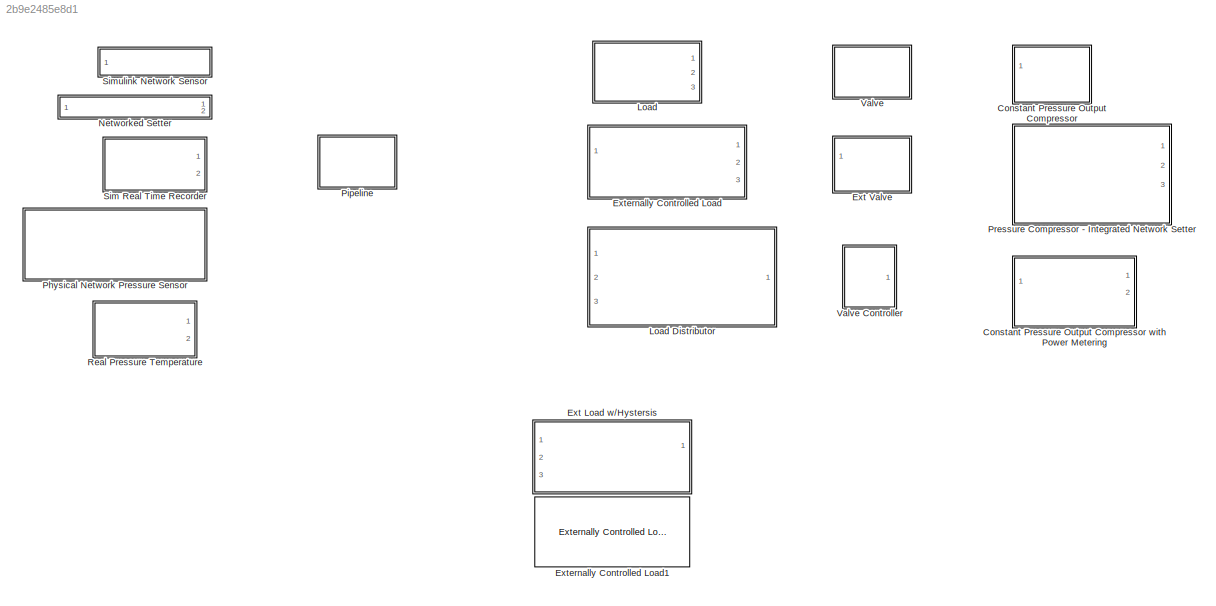
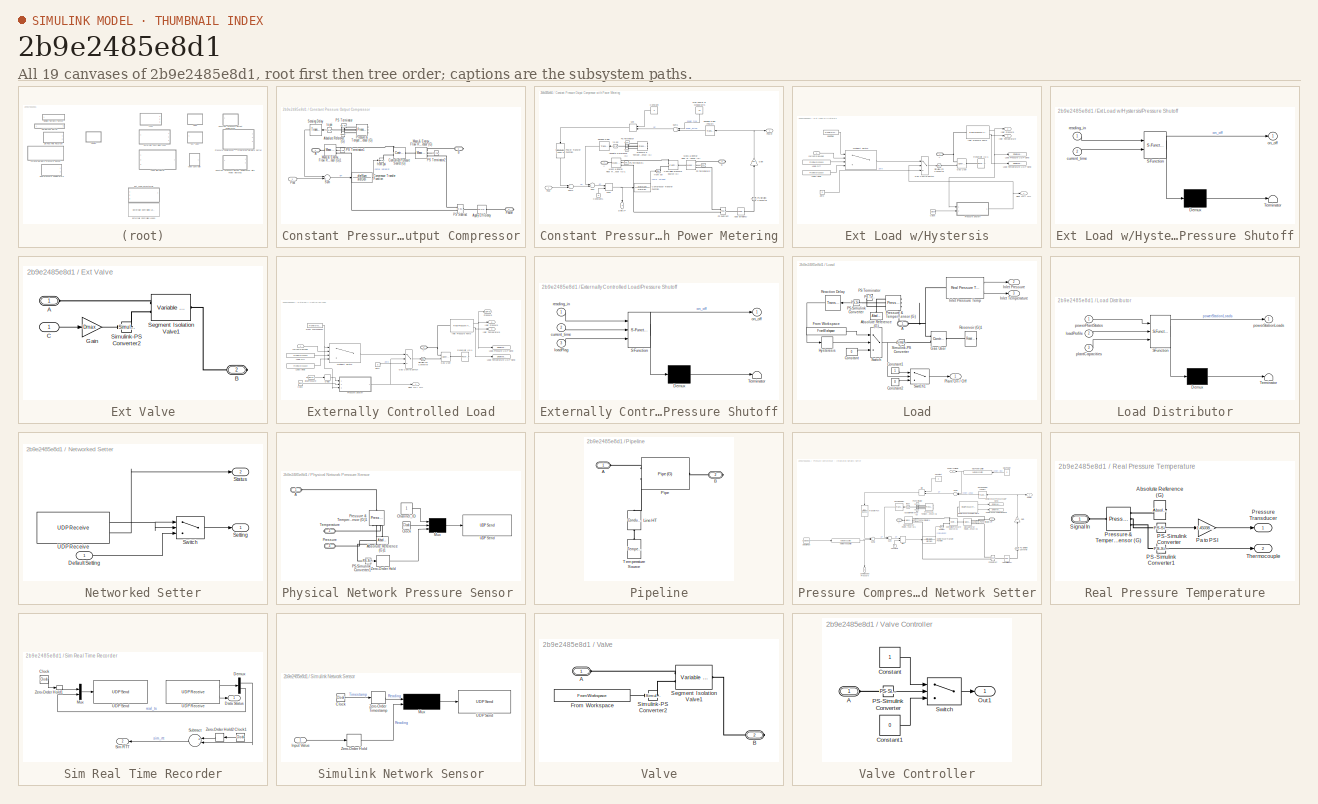
[diagram: thumbnail index - all 19 canvases of the model, root first then tree order]
MODEL slx_2b9e2485e8d1
KIND library
CONFIG AbsTol = auto
CONFIG EnableMultiTasking = off
CONFIG FixedStep = auto
CONFIG MaxStep = auto
CONFIG MinStep = auto
CONFIG RelTol = 1e-3
CONFIG SampleTimeConstraint = Unconstrained
CONFIG Solver = VariableStepAuto
CONFIG SolverName = VariableStepAuto
CONFIG StartTime = 0.0
CONFIG StopTime = 10.0
BLOCK [SubSystem] Constant Pressure Output Compressor
  Commented = on
  Ports = [1, 0, 0, 0, 0, 1, 2]
  RequestExecContextInheritance = off
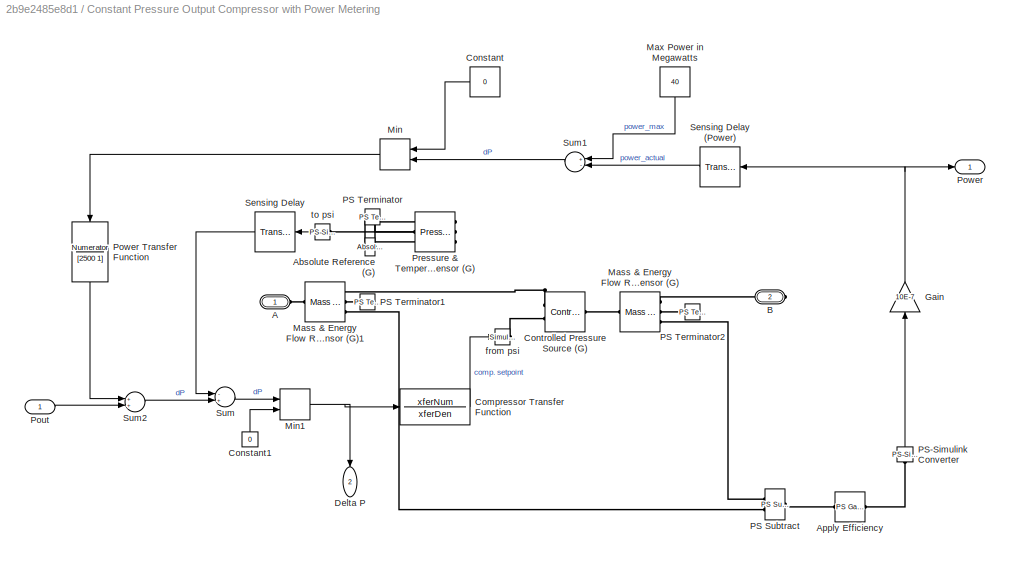
BLOCK [SubSystem] Constant Pressure Output Compressor with Power Metering
  AncestorBlock = gasLibrary/Constant Pressure\nOutput Compressor
  Ports = [1, 2, 0, 0, 0, 1, 1]
  RequestExecContextInheritance = off
BLOCK [PMIOPort] Constant Pressure Output Compressor with Power Metering/A
  Side = Left
BLOCK [Reference] Constant Pressure Output Compressor with Power Metering/Absolute Reference (G)  REF=fl_lib/Gas/Elements/Absolute Reference
(G)
  Ports = [0, 0, 0, 0, 0, 1]
  SourceBlock = fl_lib/Gas/Elements/Absolute Reference\n(G)
  SourceProductBaseCode = SS
  SourceProductName = Simscape
  SourceType = Absolute Reference\n(G)
BLOCK [Reference] Constant Pressure Output Compressor with Power Metering/Apply Efficiency  REF=fl_lib/Physical Signals/Functions/PS Gain
  Ports = [0, 0, 0, 0, 0, 1, 1]
  SourceBlock = fl_lib/Physical Signals/Functions/PS Gain
  SourceProductBaseCode = SS
  SourceProductName = Simscape
  SourceType = PS Gain
BLOCK [PMIOPort] Constant Pressure Output Compressor with Power Metering/B
  Port = 2
  Side = Right
BLOCK [TransferFcn] Constant Pressure Output Compressor with Power Metering/Compressor Transfer Function
  Denominator = xferDen
  Numerator = xferNum
BLOCK [Constant] Constant Pressure Output Compressor with Power Metering/Constant
  Value = 0
BLOCK [Constant] Constant Pressure Output Compressor with Power Metering/Constant1
  Value = 0
BLOCK [Reference] Constant Pressure Output Compressor with Power Metering/Controlled Pressure Source (G)  REF=fl_lib/Gas/Sources/Controlled Pressure
Source (G)
  Ports = [0, 0, 0, 0, 0, 2, 1]
  SourceBlock = fl_lib/Gas/Sources/Controlled Pressure\nSource (G)
  SourceProductBaseCode = SS
  SourceProductName = Simscape
  SourceType = Controlled Pressure\nSource (G)
BLOCK [Outport] Constant Pressure Output Compressor with Power Metering/Delta P
  IconDisplay = Port number
  Port = 2
BLOCK [Gain] Constant Pressure Output Compressor with Power Metering/Gain
  Gain = 10E-7
  OutDataTypeStr = Inherit: Inherit via internal rule
  ParamDataTypeStr = Inherit: Inherit via internal rule
  SaturateOnIntegerOverflow = off
BLOCK [Reference] Constant Pressure Output Compressor with Power Metering/Mass & Energy Flow Rate Sensor (G)  REF=fl_lib/Gas/Sensors/Mass & Energy Flow
Rate Sensor (G)
  Ports = [0, 0, 0, 0, 0, 1, 3]
  SourceBlock = fl_lib/Gas/Sensors/Mass & Energy Flow\nRate Sensor (G)
  SourceProductBaseCode = SS
  SourceProductName = Simscape
  SourceType = Mass & Energy Flow\nRate Sensor (G)
BLOCK [Reference] Constant Pressure Output Compressor with Power Metering/Mass & Energy Flow Rate Sensor (G)1  REF=fl_lib/Gas/Sensors/Mass & Energy Flow
Rate Sensor (G)
  Ports = [0, 0, 0, 0, 0, 1, 3]
  SourceBlock = fl_lib/Gas/Sensors/Mass & Energy Flow\nRate Sensor (G)
  SourceProductBaseCode = SS
  SourceProductName = Simscape
  SourceType = Mass & Energy Flow\nRate Sensor (G)
BLOCK [Constant] Constant Pressure Output Compressor with Power Metering/Max Power in Megawatts
  Value = 40
BLOCK [MinMax] Constant Pressure Output Compressor with Power Metering/Min
  InputSameDT = off
  Inputs = 2
  Ports = [2, 1]
  SaturateOnIntegerOverflow = off
BLOCK [MinMax] Constant Pressure Output Compressor with Power Metering/Min1
  Function = max
  InputSameDT = off
  Inputs = 2
  Ports = [2, 1]
  SaturateOnIntegerOverflow = off
BLOCK [Reference] Constant Pressure Output Compressor with Power Metering/PS Subtract  REF=fl_lib/Physical Signals/Functions/PS Subtract
  Ports = [0, 0, 0, 0, 0, 2, 1]
  SourceBlock = fl_lib/Physical Signals/Functions/PS Subtract
  SourceProductBaseCode = SS
  SourceProductName = Simscape
  SourceType = PS Subtract
BLOCK [Reference] Constant Pressure Output Compressor with Power Metering/PS Terminator  REF=fl_lib/Physical Signals/Sinks/PS Terminator
  Ports = [0, 0, 0, 0, 0, 1]
  SourceBlock = fl_lib/Physical Signals/Sinks/PS Terminator
  SourceProductBaseCode = SS
  SourceProductName = Simscape
  SourceType = PS Terminator
BLOCK [Reference] Constant Pressure Output Compressor with Power Metering/PS Terminator1  REF=fl_lib/Physical Signals/Sinks/PS Terminator
  Ports = [0, 0, 0, 0, 0, 1]
  SourceBlock = fl_lib/Physical Signals/Sinks/PS Terminator
  SourceProductBaseCode = SS
  SourceProductName = Simscape
  SourceType = PS Terminator
BLOCK [Reference] Constant Pressure Output Compressor with Power Metering/PS Terminator2  REF=fl_lib/Physical Signals/Sinks/PS Terminator
  Ports = [0, 0, 0, 0, 0, 1]
  SourceBlock = fl_lib/Physical Signals/Sinks/PS Terminator
  SourceProductBaseCode = SS
  SourceProductName = Simscape
  SourceType = PS Terminator
BLOCK [Reference] Constant Pressure Output Compressor with Power Metering/PS-Simulink Converter  REF=nesl_utility/PS-Simulink
Converter
  Ports = [0, 1, 0, 0, 0, 1]
  SourceBlock = nesl_utility/PS-Simulink\nConverter
  SourceProductBaseCode = SS
  SourceProductName = Simscape
  SourceType = PS-Simulink\nConverter
BLOCK [Inport] Constant Pressure Output Compressor with Power Metering/Pout
  IconDisplay = Port number
BLOCK [Outport] Constant Pressure Output Compressor with Power Metering/Power
  IconDisplay = Port number
BLOCK [TransferFcn] Constant Pressure Output Compressor with Power Metering/Power Transfer Function
  Denominator = [2500 1]
  Numerator = Numerator
BLOCK [Reference] Constant Pressure Output Compressor with Power Metering/Pressure & Temperature Sensor (G)  REF=fl_lib/Gas/Sensors/Pressure &
Temperature Sensor
(G)
  Ports = [0, 0, 0, 0, 0, 1, 3]
  SourceBlock = fl_lib/Gas/Sensors/Pressure &\nTemperature Sensor\n(G)
  SourceProductBaseCode = SS
  SourceProductName = Simscape
  SourceType = Pressure &\nTemperature Sensor\n(G)
BLOCK [TransportDelay] Constant Pressure Output Compressor with Power Metering/Sensing Delay
  DelayTime = delaySeconds
  Ports = [1, 1]
  TransDelayFeedthrough = on
BLOCK [TransportDelay] Constant Pressure Output Compressor with Power Metering/Sensing Delay (Power)
  DelayTime = delaySeconds
  Ports = [1, 1]
  TransDelayFeedthrough = on
BLOCK [Sum] Constant Pressure Output Compressor with Power Metering/Sum
  InputSameDT = off
  Inputs = -+
  OutDataTypeStr = Inherit: Inherit via internal rule
  Ports = [2, 1]
  SaturateOnIntegerOverflow = off
BLOCK [Sum] Constant Pressure Output Compressor with Power Metering/Sum1
  InputSameDT = off
  Inputs = +-
  OutDataTypeStr = Inherit: Inherit via internal rule
  Ports = [2, 1]
  SaturateOnIntegerOverflow = off
BLOCK [Sum] Constant Pressure Output Compressor with Power Metering/Sum2
  InputSameDT = off
  OutDataTypeStr = Inherit: Inherit via internal rule
  Ports = [2, 1]
  SaturateOnIntegerOverflow = off
BLOCK [Reference] Constant Pressure Output Compressor with Power Metering/from psi  REF=nesl_utility/Simulink-PS
Converter
  Ports = [1, 0, 0, 0, 0, 0, 1]
  SourceBlock = nesl_utility/Simulink-PS\nConverter
  SourceProductBaseCode = SS
  SourceProductName = Simscape
  SourceType = Simulink-PS\nConverter
BLOCK [Reference] Constant Pressure Output Compressor with Power Metering/to psi  REF=nesl_utility/PS-Simulink
Converter
  Ports = [0, 1, 0, 0, 0, 1]
  SourceBlock = nesl_utility/PS-Simulink\nConverter
  SourceProductBaseCode = SS
  SourceProductName = Simscape
  SourceType = PS-Simulink\nConverter
BLOCK [PMIOPort] Constant Pressure Output Compressor/A
  Side = Left
BLOCK [Reference] Constant Pressure Output Compressor/Absolute Reference (G)  REF=fl_lib/Gas/Elements/Absolute Reference
(G)
  Ports = [0, 0, 0, 0, 0, 1]
  SourceBlock = fl_lib/Gas/Elements/Absolute Reference\n(G)
  SourceProductBaseCode = SS
  SourceProductName = Simscape
  SourceType = Absolute Reference\n(G)
BLOCK [Reference] Constant Pressure Output Compressor/Apply Efficiency  REF=fl_lib/Physical Signals/Functions/PS Gain
  Ports = [0, 0, 0, 0, 0, 1, 1]
  SourceBlock = fl_lib/Physical Signals/Functions/PS Gain
  SourceProductBaseCode = SS
  SourceProductName = Simscape
  SourceType = PS Gain
BLOCK [PMIOPort] Constant Pressure Output Compressor/B
  Port = 3
  Side = Right
BLOCK [TransferFcn] Constant Pressure Output Compressor/Compressor Transfer Function
  Denominator = xferDen
  Numerator = xferNum
BLOCK [Reference] Constant Pressure Output Compressor/Controlled Pressure Source (G)  REF=fl_lib/Gas/Sources/Controlled Pressure
Source (G)
  Ports = [0, 0, 0, 0, 0, 2, 1]
  SourceBlock = fl_lib/Gas/Sources/Controlled Pressure\nSource (G)
  SourceProductBaseCode = SS
  SourceProductName = Simscape
  SourceType = Controlled Pressure\nSource (G)
BLOCK [Reference] Constant Pressure Output Compressor/Mass & Energy Flow Rate Sensor (G)  REF=fl_lib/Gas/Sensors/Mass & Energy Flow
Rate Sensor (G)
  Ports = [0, 0, 0, 0, 0, 1, 3]
  SourceBlock = fl_lib/Gas/Sensors/Mass & Energy Flow\nRate Sensor (G)
  SourceProductBaseCode = SS
  SourceProductName = Simscape
  SourceType = Mass & Energy Flow\nRate Sensor (G)
BLOCK [Reference] Constant Pressure Output Compressor/Mass & Energy Flow Rate Sensor (G)1  REF=fl_lib/Gas/Sensors/Mass & Energy Flow
Rate Sensor (G)
  Ports = [0, 0, 0, 0, 0, 1, 3]
  SourceBlock = fl_lib/Gas/Sensors/Mass & Energy Flow\nRate Sensor (G)
  SourceProductBaseCode = SS
  SourceProductName = Simscape
  SourceType = Mass & Energy Flow\nRate Sensor (G)
BLOCK [Reference] Constant Pressure Output Compressor/PS Subtract  REF=fl_lib/Physical Signals/Functions/PS Subtract
  Ports = [0, 0, 0, 0, 0, 2, 1]
  SourceBlock = fl_lib/Physical Signals/Functions/PS Subtract
  SourceProductBaseCode = SS
  SourceProductName = Simscape
  SourceType = PS Subtract
BLOCK [Reference] Constant Pressure Output Compressor/PS Terminator  REF=fl_lib/Physical Signals/Sinks/PS Terminator
  Ports = [0, 0, 0, 0, 0, 1]
  SourceBlock = fl_lib/Physical Signals/Sinks/PS Terminator
  SourceProductBaseCode = SS
  SourceProductName = Simscape
  SourceType = PS Terminator
BLOCK [Reference] Constant Pressure Output Compressor/PS Terminator1  REF=fl_lib/Physical Signals/Sinks/PS Terminator
  Ports = [0, 0, 0, 0, 0, 1]
  SourceBlock = fl_lib/Physical Signals/Sinks/PS Terminator
  SourceProductBaseCode = SS
  SourceProductName = Simscape
  SourceType = PS Terminator
BLOCK [Reference] Constant Pressure Output Compressor/PS Terminator2  REF=fl_lib/Physical Signals/Sinks/PS Terminator
  Ports = [0, 0, 0, 0, 0, 1]
  SourceBlock = fl_lib/Physical Signals/Sinks/PS Terminator
  SourceProductBaseCode = SS
  SourceProductName = Simscape
  SourceType = PS Terminator
BLOCK [Inport] Constant Pressure Output Compressor/Pout
  IconDisplay = Port number
BLOCK [PMIOPort] Constant Pressure Output Compressor/Power
  Port = 2
  Side = Right
BLOCK [Reference] Constant Pressure Output Compressor/Pressure & Temperature Sensor (G)  REF=fl_lib/Gas/Sensors/Pressure &
Temperature Sensor
(G)
  Ports = [0, 0, 0, 0, 0, 1, 3]
  SourceBlock = fl_lib/Gas/Sensors/Pressure &\nTemperature Sensor\n(G)
  SourceProductBaseCode = SS
  SourceProductName = Simscape
  SourceType = Pressure &\nTemperature Sensor\n(G)
BLOCK [TransportDelay] Constant Pressure Output Compressor/Sensing Delay
  DelayTime = delaySeconds
  Ports = [1, 1]
  TransDelayFeedthrough = on
BLOCK [Sum] Constant Pressure Output Compressor/Sum
  InputSameDT = off
  Inputs = -+
  OutDataTypeStr = Inherit: Inherit via internal rule
  Ports = [2, 1]
  SaturateOnIntegerOverflow = off
BLOCK [Reference] Constant Pressure Output Compressor/from psi  REF=nesl_utility/Simulink-PS
Converter
  Ports = [1, 0, 0, 0, 0, 0, 1]
  SourceBlock = nesl_utility/Simulink-PS\nConverter
  SourceProductBaseCode = SS
  SourceProductName = Simscape
  SourceType = Simulink-PS\nConverter
BLOCK [Reference] Constant Pressure Output Compressor/to psi  REF=nesl_utility/PS-Simulink
Converter
  Ports = [0, 1, 0, 0, 0, 1]
  SourceBlock = nesl_utility/PS-Simulink\nConverter
  SourceProductBaseCode = SS
  SourceProductName = Simscape
  SourceType = PS-Simulink\nConverter
BLOCK [SubSystem] Ext Load w//Hystersis
  AncestorBlock = gasLibrary/Externally Controlled Load
  Commented = on
  Ports = [1, 3, 0, 0, 0, 1]
  RequestExecContextInheritance = off
BLOCK [PMIOPort] Ext Load w//Hystersis/A
  Side = Left
BLOCK [Clock] Ext Load w//Hystersis/Clock
BLOCK [Switch] Ext Load w//Hystersis/Gas Control Switch
  Criteria = u2 > Threshold
  InputSameDT = off
  SaturateOnIntegerOverflow = off
BLOCK [Reference] Ext Load w//Hystersis/Gas User  REF=fl_lib/Gas/Sources/Controlled Mass Flow
Rate Source (G)
  Ports = [0, 0, 0, 0, 0, 2, 1]
  SourceBlock = fl_lib/Gas/Sources/Controlled Mass Flow\nRate Source (G)
  SourceProductBaseCode = SS
  SourceProductName = Simscape
  SourceType = Controlled Mass Flow\nRate Source (G)
BLOCK [Outport] Ext Load w//Hystersis/Inlet Pressure
  IconDisplay = Port number
  Port = 2
BLOCK [Reference] Ext Load w//Hystersis/Inlet Pressure Temp  REF=$bdroot/Real Pressure Temperature
  Ports = [0, 2, 0, 0, 0, 1]
  SourceBlock = $bdroot/Real Pressure Temperature
  SourceType = SubSystem
BLOCK [Outport] Ext Load w//Hystersis/Inlet Temperature
  IconDisplay = Port number
  Port = 3
BLOCK [FromWorkspace] Ext Load w//Hystersis/Load Initial
  SampleTime = 0
  VariableName = [gasTime, gasLoad]
  ZeroCross = on
BLOCK [FromWorkspace] Ext Load w//Hystersis/Load Off
  SampleTime = 0
  VariableName = [gasTime, gasLoad]
  ZeroCross = on
BLOCK [Reference] Ext Load w//Hystersis/Load Pressure UDP Send  REF=$bdroot/Simulink Network Sensor
  Ports = [1]
  SourceBlock = $bdroot/Simulink Network Sensor
BLOCK [Reference] Ext Load w//Hystersis/Load Temperature UDP Send  REF=$bdroot/Simulink Network Sensor
  Ports = [1]
  SourceBlock = $bdroot/Simulink Network Sensor
BLOCK [MultiPortSwitch] Ext Load w//Hystersis/Multiport Switch
  InputSameDT = off
  Ports = [4, 1]
  SaturateOnIntegerOverflow = off
BLOCK [Outport] Ext Load w//Hystersis/Plant On // Off
  IconDisplay = Port number
BLOCK [SubSystem] Ext Load w//Hystersis/Pressure Shutoff
  ErrorFcn = Stateflow.Translate.translate
  PermitHierarchicalResolution = ExplicitOnly
  Ports = [2, 1]
  RequestExecContextInheritance = off
  SFBlockType = MATLAB Function
  SystemSampleTime = 30
  TreatAsAtomicUnit = on
BLOCK [Demux] Ext Load w//Hystersis/Pressure Shutoff/ Demux 
  Outputs = 1
  Ports = [1, 1]
BLOCK [S-Function] Ext Load w//Hystersis/Pressure Shutoff/ SFunction 
  EnableBusSupport = on
  FunctionName = sf_sfun
  Parameters = shutoff_duration,shutoff_point
  PortCounts = [2 2]
  Ports = [2, 2]
  SFcnIsStateOwnerBlock = off
  SFunctionDeploymentMode = off
  Tag = Stateflow S-Function gasLibrary 1
BLOCK [Terminator] Ext Load w//Hystersis/Pressure Shutoff/ Terminator 
BLOCK [Inport] Ext Load w//Hystersis/Pressure Shutoff/current_time
  IconDisplay = Port number
  Port = 2
BLOCK [Outport] Ext Load w//Hystersis/Pressure Shutoff/on_off
  IconDisplay = Port number
BLOCK [Inport] Ext Load w//Hystersis/Pressure Shutoff/reading_in
  IconDisplay = Port number
BLOCK [Reference] Ext Load w//Hystersis/Reservoir (G)1  REF=fl_lib/Gas/Elements/Reservoir (G)
  Ports = [0, 0, 0, 0, 0, 1]
  SourceBlock = fl_lib/Gas/Elements/Reservoir (G)
  SourceProductName = Foundation Library
  SourceType = Reservoir (G)
BLOCK [Reference] Ext Load w//Hystersis/Simulink-PS Converter  REF=nesl_utility/Simulink-PS
Converter
  Ports = [1, 0, 0, 0, 0, 0, 1]
  SourceBlock = nesl_utility/Simulink-PS\nConverter
  SourceProductBaseCode = SS
  SourceProductName = Simscape
  SourceType = Simulink-PS\nConverter
BLOCK [Constant] Ext Load w//Hystersis/Zero
  Value = 0
BLOCK [Inport] Ext Load w//Hystersis/currentGasLoad
  IconDisplay = Port number
BLOCK [FromWorkspace] Ext Load w//Hystersis/loadFlag
  SampleTime = 0
  VariableName = loadFlag
  ZeroCross = on
BLOCK [SubSystem] Ext Valve
  AncestorBlock = gasLibrary/Valve
  Ports = [1, 0, 0, 0, 0, 1, 1]
  RequestExecContextInheritance = off
BLOCK [PMIOPort] Ext Valve/A
  Side = Left
BLOCK [PMIOPort] Ext Valve/B
  Port = 2
  Side = Right
BLOCK [Inport] Ext Valve/C
  IconDisplay = Port number
BLOCK [Gain] Ext Valve/Gain
  Gain = Dmax
  OutDataTypeStr = Inherit: Inherit via internal rule
  ParamDataTypeStr = Inherit: Inherit via internal rule
  SaturateOnIntegerOverflow = off
BLOCK [Reference] Ext Valve/Segment Isolation Valve1  REF=fl_lib/Gas/Elements/Variable Local
Restriction (G)
  Ports = [0, 0, 0, 0, 0, 2, 1]
  SourceBlock = fl_lib/Gas/Elements/Variable Local\nRestriction (G)
  SourceProductBaseCode = SS
  SourceProductName = Simscape
  SourceType = Variable Local\nRestriction (G)
BLOCK [Reference] Ext Valve/Simulink-PS Converter2  REF=nesl_utility/Simulink-PS
Converter
  Ports = [1, 0, 0, 0, 0, 0, 1]
  SourceBlock = nesl_utility/Simulink-PS\nConverter
  SourceProductBaseCode = SS
  SourceProductName = Simscape
  SourceType = Simulink-PS\nConverter
BLOCK [SubSystem] Externally Controlled Load
  AncestorBlock = gasLibrary/Externally Controlled Load
  Ports = [1, 3, 0, 0, 0, 1]
  RequestExecContextInheritance = off
BLOCK [PMIOPort] Externally Controlled Load/A
  Side = Left
BLOCK [Clock] Externally Controlled Load/Clock
BLOCK [Delay] Externally Controlled Load/Delay
  InputPortMap = u0
  Ports = [1, 1]
BLOCK [FromWorkspace] Externally Controlled Load/From Workspace1
  SampleTime = 0
  VariableName = loadFlag
  ZeroCross = on
BLOCK [Switch] Externally Controlled Load/Gas Control Switch
  Criteria = u2 > Threshold
  InputSameDT = off
  SaturateOnIntegerOverflow = off
BLOCK [Reference] Externally Controlled Load/Gas User  REF=fl_lib/Gas/Sources/Controlled Mass Flow
Rate Source (G)
  Ports = [0, 0, 0, 0, 0, 2, 1]
  SourceBlock = fl_lib/Gas/Sources/Controlled Mass Flow\nRate Source (G)
  SourceProductBaseCode = SS
  SourceProductName = Simscape
  SourceType = Controlled Mass Flow\nRate Source (G)
BLOCK [Outport] Externally Controlled Load/Inlet Pressure
  IconDisplay = Port number
  Port = 2
BLOCK [Reference] Externally Controlled Load/Inlet Pressure Temp  REF=$bdroot/Real Pressure Temperature
  Ports = [0, 2, 0, 0, 0, 1]
  SourceBlock = $bdroot/Real Pressure Temperature
  SourceType = SubSystem
BLOCK [Outport] Externally Controlled Load/Inlet Temperature
  IconDisplay = Port number
  Port = 3
BLOCK [FromWorkspace] Externally Controlled Load/Load Initial
  SampleTime = 0
  VariableName = [gasTime, gasLoad]
  ZeroCross = on
BLOCK [FromWorkspace] Externally Controlled Load/Load Off
  SampleTime = 0
  VariableName = [gasTime, gasLoad]
  ZeroCross = on
BLOCK [Reference] Externally Controlled Load/Load Pressure UDP Send  REF=$bdroot/Simulink Network Sensor
  Ports = [1]
  SourceBlock = $bdroot/Simulink Network Sensor
BLOCK [Reference] Externally Controlled Load/Load Temperature UDP Send  REF=$bdroot/Simulink Network Sensor
  Ports = [1]
  SourceBlock = $bdroot/Simulink Network Sensor
BLOCK [MultiPortSwitch] Externally Controlled Load/Multiport Switch
  InputSameDT = off
  Ports = [4, 1]
  SaturateOnIntegerOverflow = off
BLOCK [Outport] Externally Controlled Load/Plant On // Off
  IconDisplay = Port number
BLOCK [Goto] Externally Controlled Load/Pressure
  GotoTag = localPressure
BLOCK [SubSystem] Externally Controlled Load/Pressure Shutoff
  ErrorFcn = Stateflow.Translate.translate
  PermitHierarchicalResolution = ExplicitOnly
  Ports = [3, 1]
  RequestExecContextInheritance = off
  SFBlockType = MATLAB Function
  SystemSampleTime = 30
  TreatAsAtomicUnit = on
BLOCK [Demux] Externally Controlled Load/Pressure Shutoff/ Demux 
  Outputs = 1
  Ports = [1, 1]
BLOCK [S-Function] Externally Controlled Load/Pressure Shutoff/ SFunction 
  EnableBusSupport = off
  FunctionName = sf_sfun
  Parameters = shutoff_duration,shutoff_point
  PortCounts = [3 2]
  Ports = [3, 2]
  SFcnIsStateOwnerBlock = off
  SFunctionDeploymentMode = off
  Tag = Stateflow S-Function gasLibrary 3
BLOCK [Terminator] Externally Controlled Load/Pressure Shutoff/ Terminator 
BLOCK [Inport] Externally Controlled Load/Pressure Shutoff/current_time
  IconDisplay = Port number
  Port = 2
BLOCK [Inport] Externally Controlled Load/Pressure Shutoff/loadFlag
  IconDisplay = Port number
  Port = 3
BLOCK [Outport] Externally Controlled Load/Pressure Shutoff/on_off
  IconDisplay = Port number
BLOCK [Inport] Externally Controlled Load/Pressure Shutoff/reading_in
  IconDisplay = Port number
BLOCK [Reference] Externally Controlled Load/Reservoir (G)1  REF=fl_lib/Gas/Elements/Reservoir (G)
  Ports = [0, 0, 0, 0, 0, 1]
  SourceBlock = fl_lib/Gas/Elements/Reservoir (G)
  SourceProductName = Foundation Library
  SourceType = Reservoir (G)
BLOCK [Reference] Externally Controlled Load/Simulink-PS Converter  REF=nesl_utility/Simulink-PS
Converter
  Ports = [1, 0, 0, 0, 0, 0, 1]
  SourceBlock = nesl_utility/Simulink-PS\nConverter
  SourceProductBaseCode = SS
  SourceProductName = Simscape
  SourceType = Simulink-PS\nConverter
BLOCK [Constant] Externally Controlled Load/Zero
  Value = 0
BLOCK [Inport] Externally Controlled Load/currentGasLoad
  IconDisplay = Port number
BLOCK [From] Externally Controlled Load/locaPressure
  GotoTag = localPressure
BLOCK [Reference] Externally Controlled Load1  REF=$bdroot/Externally Controlled Load
  Commented = on
  Ports = [1, 3, 0, 0, 0, 1]
  SourceBlock = $bdroot/Externally Controlled Load
BLOCK [SubSystem] Load
  Ports = [0, 3, 0, 0, 0, 1]
  RequestExecContextInheritance = off
BLOCK [SubSystem] Load Distributor
  ErrorFcn = Stateflow.Translate.translate
  PermitHierarchicalResolution = ExplicitOnly
  Ports = [3, 1]
  RequestExecContextInheritance = off
  SFBlockType = MATLAB Function
  TreatAsAtomicUnit = on
BLOCK [Demux] Load Distributor/ Demux 
  Outputs = 1
  Ports = [1, 1]
BLOCK [S-Function] Load Distributor/ SFunction 
  EnableBusSupport = on
  FunctionName = sf_sfun
  PortCounts = [3 2]
  Ports = [3, 2]
  SFcnIsStateOwnerBlock = off
  SFunctionDeploymentMode = off
  Tag = Stateflow S-Function gasLibrary 2
BLOCK [Terminator] Load Distributor/ Terminator 
BLOCK [Inport] Load Distributor/loadProfile
  IconDisplay = Port number
  Port = 2
BLOCK [Inport] Load Distributor/plantCapacities
  IconDisplay = Port number
  Port = 3
BLOCK [Inport] Load Distributor/powerPlantStates
  IconDisplay = Port number
BLOCK [Outport] Load Distributor/powerStationLoads
  IconDisplay = Port number
BLOCK [PMIOPort] Load/A
  Side = Left
BLOCK [Reference] Load/Absolute Reference (G)  REF=fl_lib/Gas/Elements/Absolute Reference
(G)
  Ports = [0, 0, 0, 0, 0, 1]
  SourceBlock = fl_lib/Gas/Elements/Absolute Reference\n(G)
  SourceProductBaseCode = SS
  SourceProductName = Simscape
  SourceType = Absolute Reference\n(G)
BLOCK [Constant] Load/Constant
  Value = 0
BLOCK [Constant] Load/Constant1
BLOCK [Constant] Load/Constant2
  Value = 0
BLOCK [FromWorkspace] Load/From Workspace
  OutputAfterFinalValue = Holding final value
  SampleTime = 0
  VariableName = [gasTime gasLoad]
  ZeroCross = on
BLOCK [Reference] Load/Gas User  REF=fl_lib/Gas/Sources/Controlled Mass Flow
Rate Source (G)
  Ports = [0, 0, 0, 0, 0, 2, 1]
  SourceBlock = fl_lib/Gas/Sources/Controlled Mass Flow\nRate Source (G)
  SourceProductBaseCode = SS
  SourceProductName = Simscape
  SourceType = Controlled Mass Flow\nRate Source (G)
BLOCK [Relay] Load/Hysteresis
  OffSwitchValue = pCutoff
  OnSwitchValue = pCutoff*1.05
BLOCK [Outport] Load/Inlet Pressure
  IconDisplay = Port number
  Port = 2
BLOCK [Reference] Load/Inlet Pressure Temp  REF=$bdroot/Real Pressure Temperature
  Ports = [0, 2, 0, 0, 0, 1]
  SourceBlock = $bdroot/Real Pressure Temperature
  SourceType = SubSystem
BLOCK [Outport] Load/Inlet Temperature
  IconDisplay = Port number
  Port = 3
BLOCK [Reference] Load/PS Terminator  REF=fl_lib/Physical Signals/Sinks/PS Terminator
  Ports = [0, 0, 0, 0, 0, 1]
  SourceBlock = fl_lib/Physical Signals/Sinks/PS Terminator
  SourceProductBaseCode = SS
  SourceProductName = Simscape
  SourceType = PS Terminator
BLOCK [Reference] Load/PS-Simulink Converter  REF=nesl_utility/PS-Simulink
Converter
  Ports = [0, 1, 0, 0, 0, 1]
  SourceBlock = nesl_utility/PS-Simulink\nConverter
  SourceProductBaseCode = SS
  SourceProductName = Simscape
  SourceType = PS-Simulink\nConverter
BLOCK [Outport] Load/Plant On // Off
  IconDisplay = Port number
BLOCK [Reference] Load/Pressure & Temperature Sensor (G)  REF=fl_lib/Gas/Sensors/Pressure &
Temperature Sensor
(G)
  Ports = [0, 0, 0, 0, 0, 1, 3]
  SourceBlock = fl_lib/Gas/Sensors/Pressure &\nTemperature Sensor\n(G)
  SourceProductBaseCode = SS
  SourceProductName = Simscape
  SourceType = Pressure &\nTemperature Sensor\n(G)
BLOCK [TransportDelay] Load/Reaction Delay
  DelayTime = 60
  InitialOutput = pNominal
  Ports = [1, 1]
BLOCK [Reference] Load/Reservoir (G)1  REF=fl_lib/Gas/Elements/Reservoir (G)
  Ports = [0, 0, 0, 0, 0, 1]
  SourceBlock = fl_lib/Gas/Elements/Reservoir (G)
  SourceProductName = Foundation Library
  SourceType = Reservoir (G)
BLOCK [Reference] Load/Simulink-PS Converter  REF=nesl_utility/Simulink-PS
Converter
  Ports = [1, 0, 0, 0, 0, 0, 1]
  SourceBlock = nesl_utility/Simulink-PS\nConverter
  SourceProductBaseCode = SS
  SourceProductName = Simscape
  SourceType = Simulink-PS\nConverter
BLOCK [Switch] Load/Switch
  Criteria = u2 > Threshold
  InputSameDT = off
  SaturateOnIntegerOverflow = off
  Threshold = 0.5
BLOCK [Switch] Load/Switch1
  Criteria = u2 > Threshold
  InputSameDT = off
  SaturateOnIntegerOverflow = off
BLOCK [SubSystem] Networked Setter
  Ports = [1, 2]
  RequestExecContextInheritance = off
BLOCK [Inport] Networked Setter/Default Setting
  IconDisplay = Port number
BLOCK [Outport] Networked Setter/Setting 
  IconDisplay = Port number
BLOCK [Outport] Networked Setter/Status
  IconDisplay = Port number
  Port = 2
BLOCK [Switch] Networked Setter/Switch
  Criteria = u2 > Threshold
  InputSameDT = off
  SaturateOnIntegerOverflow = off
BLOCK [Reference] Networked Setter/UDP Receive  REF=instrumentlib/UDP Receive
  Ports = [0, 2]
  SourceBlock = instrumentlib/UDP Receive
  SourceProductBaseCode = IC
  SourceProductName = Instrument Control Toolbox
  SourceType = UDP Receive
BLOCK [SubSystem] Physical Network Pressure Sensor 
  Ports = [0, 0, 0, 0, 0, 1, 2]
  RequestExecContextInheritance = off
BLOCK [PMIOPort] Physical Network Pressure Sensor /A
  Side = Left
BLOCK [Reference] Physical Network Pressure Sensor /Absolute Reference (G)1  REF=fl_lib/Gas/Elements/Absolute Reference
(G)
  Ports = [0, 0, 0, 0, 0, 1]
  SourceBlock = fl_lib/Gas/Elements/Absolute Reference\n(G)
  SourceProductBaseCode = SS
  SourceProductName = Simscape
  SourceType = Absolute Reference\n(G)
BLOCK [Constant] Physical Network Pressure Sensor /Channel_ID
BLOCK [Clock] Physical Network Pressure Sensor /Clock
BLOCK [Mux] Physical Network Pressure Sensor /Mux
  DisplayOption = signals
  Inputs = 3
  Ports = [3, 1]
BLOCK [Reference] Physical Network Pressure Sensor /PS-Simulink Converter1  REF=nesl_utility/PS-Simulink
Converter
  Ports = [0, 1, 0, 0, 0, 1]
  SourceBlock = nesl_utility/PS-Simulink\nConverter
  SourceProductBaseCode = SS
  SourceProductName = Simscape
  SourceType = PS-Simulink\nConverter
BLOCK [PMIOPort] Physical Network Pressure Sensor /Pressure
  Port = 3
  Side = Right
BLOCK [Reference] Physical Network Pressure Sensor /Pressure & Temperature Sensor (G)1  REF=fl_lib/Gas/Sensors/Pressure &
Temperature Sensor
(G)
  Ports = [0, 0, 0, 0, 0, 1, 3]
  SourceBlock = fl_lib/Gas/Sensors/Pressure &\nTemperature Sensor\n(G)
  SourceProductBaseCode = SS
  SourceProductName = Simscape
  SourceType = Pressure &\nTemperature Sensor\n(G)
BLOCK [PMIOPort] Physical Network Pressure Sensor /Temperature
  Port = 2
  Side = Right
BLOCK [Reference] Physical Network Pressure Sensor /UDP Send  REF=instrumentlib/UDP Send
  Ports = [1]
  SourceBlock = instrumentlib/UDP Send
  SourceProductBaseCode = IC
  SourceProductName = Instrument Control Toolbox
  SourceType = UDP Send
BLOCK [ZeroOrderHold] Physical Network Pressure Sensor /Zero-Order Hold
  SampleTime = 300
BLOCK [SubSystem] Pipeline
  Ports = [0, 0, 0, 0, 0, 1, 1]
  RequestExecContextInheritance = off
BLOCK [PMIOPort] Pipeline/A
  Side = Left
BLOCK [PMIOPort] Pipeline/B
  Port = 2
  Side = Right
BLOCK [Reference] Pipeline/Line HT  REF=fl_lib/Thermal/Thermal Elements/Conductive Heat
Transfer
  Ports = [0, 0, 0, 0, 0, 1, 1]
  SourceBlock = fl_lib/Thermal/Thermal Elements/Conductive Heat\nTransfer
  SourceProductBaseCode = SS
  SourceProductName = Simscape
  SourceType = Conductive Heat\nTransfer
BLOCK [Reference] Pipeline/Pipe  REF=fl_lib/Gas/Elements/Pipe (G)
  Ports = [0, 0, 0, 0, 0, 2, 1]
  SourceBlock = fl_lib/Gas/Elements/Pipe (G)
  SourceProductBaseCode = SS
  SourceProductName = Simscape
  SourceType = Pipe (G)
BLOCK [Reference] Pipeline/Temperature Source  REF=fl_lib/Thermal/Thermal Sources/Temperature Source
  Ports = [0, 0, 0, 0, 0, 1]
  SourceBlock = fl_lib/Thermal/Thermal Sources/Temperature Source
  SourceProductBaseCode = SS
  SourceProductName = Simscape
  SourceType = Temperature Source
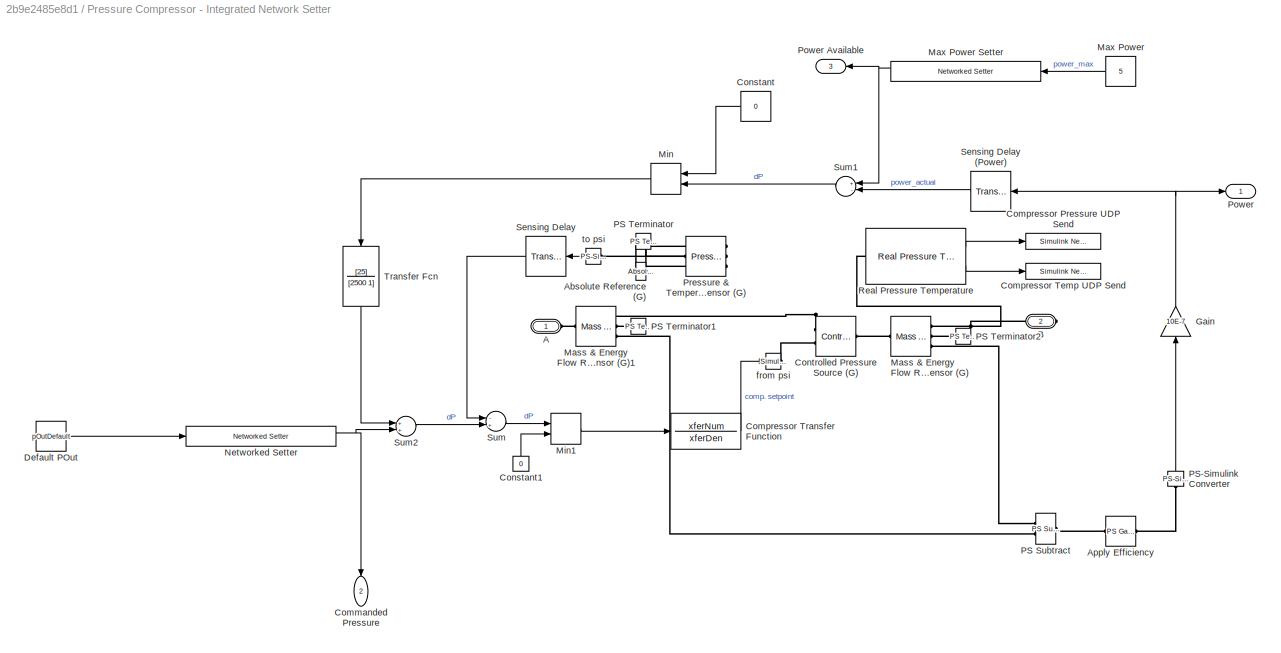
BLOCK [SubSystem] Pressure Compressor - Integrated Network Setter
  AncestorBlock = gasLibrary/Constant Pressure\nOutput Compressor
  Ports = [0, 3, 0, 0, 0, 1, 1]
  RequestExecContextInheritance = off
BLOCK [PMIOPort] Pressure Compressor - Integrated Network Setter/A
  Side = Left
BLOCK [Reference] Pressure Compressor - Integrated Network Setter/Absolute Reference (G)  REF=fl_lib/Gas/Elements/Absolute Reference
(G)
  Ports = [0, 0, 0, 0, 0, 1]
  SourceBlock = fl_lib/Gas/Elements/Absolute Reference\n(G)
  SourceProductBaseCode = SS
  SourceProductName = Simscape
  SourceType = Absolute Reference\n(G)
BLOCK [Reference] Pressure Compressor - Integrated Network Setter/Apply Efficiency  REF=fl_lib/Physical Signals/Functions/PS Gain
  Ports = [0, 0, 0, 0, 0, 1, 1]
  SourceBlock = fl_lib/Physical Signals/Functions/PS Gain
  SourceProductBaseCode = SS
  SourceProductName = Simscape
  SourceType = PS Gain
BLOCK [PMIOPort] Pressure Compressor - Integrated Network Setter/B
  Port = 2
  Side = Right
BLOCK [Outport] Pressure Compressor - Integrated Network Setter/Commanded Pressure
  IconDisplay = Port number
  Port = 2
BLOCK [Reference] Pressure Compressor - Integrated Network Setter/Compressor Pressure UDP Send  REF=$bdroot/Simulink Network Sensor
  Ports = [1]
  SourceBlock = $bdroot/Simulink Network Sensor
BLOCK [Reference] Pressure Compressor - Integrated Network Setter/Compressor Temp UDP Send  REF=$bdroot/Simulink Network Sensor
  Ports = [1]
  SourceBlock = $bdroot/Simulink Network Sensor
BLOCK [TransferFcn] Pressure Compressor - Integrated Network Setter/Compressor Transfer Function
  Denominator = xferDen
  Numerator = xferNum
BLOCK [Constant] Pressure Compressor - Integrated Network Setter/Constant
  Value = 0
BLOCK [Constant] Pressure Compressor - Integrated Network Setter/Constant1
  Value = 0
BLOCK [Reference] Pressure Compressor - Integrated Network Setter/Controlled Pressure Source (G)  REF=fl_lib/Gas/Sources/Controlled Pressure
Source (G)
  Ports = [0, 0, 0, 0, 0, 2, 1]
  SourceBlock = fl_lib/Gas/Sources/Controlled Pressure\nSource (G)
  SourceProductBaseCode = SS
  SourceProductName = Simscape
  SourceType = Controlled Pressure\nSource (G)
BLOCK [Constant] Pressure Compressor - Integrated Network Setter/Default POut
  Value = pOutDefault
BLOCK [Gain] Pressure Compressor - Integrated Network Setter/Gain
  Gain = 10E-7
  OutDataTypeStr = Inherit: Inherit via internal rule
  ParamDataTypeStr = Inherit: Inherit via internal rule
  SaturateOnIntegerOverflow = off
BLOCK [Reference] Pressure Compressor - Integrated Network Setter/Mass & Energy Flow Rate Sensor (G)  REF=fl_lib/Gas/Sensors/Mass & Energy Flow
Rate Sensor (G)
  Ports = [0, 0, 0, 0, 0, 1, 3]
  SourceBlock = fl_lib/Gas/Sensors/Mass & Energy Flow\nRate Sensor (G)
  SourceProductBaseCode = SS
  SourceProductName = Simscape
  SourceType = Mass & Energy Flow\nRate Sensor (G)
BLOCK [Reference] Pressure Compressor - Integrated Network Setter/Mass & Energy Flow Rate Sensor (G)1  REF=fl_lib/Gas/Sensors/Mass & Energy Flow
Rate Sensor (G)
  Ports = [0, 0, 0, 0, 0, 1, 3]
  SourceBlock = fl_lib/Gas/Sensors/Mass & Energy Flow\nRate Sensor (G)
  SourceProductBaseCode = SS
  SourceProductName = Simscape
  SourceType = Mass & Energy Flow\nRate Sensor (G)
BLOCK [Constant] Pressure Compressor - Integrated Network Setter/Max Power
  Value = 5
BLOCK [Reference] Pressure Compressor - Integrated Network Setter/Max Power Setter  REF=$bdroot/Networked Setter
  Ports = [1, 2]
  SourceBlock = $bdroot/Networked Setter
BLOCK [MinMax] Pressure Compressor - Integrated Network Setter/Min
  InputSameDT = off
  Inputs = 2
  Ports = [2, 1]
  SaturateOnIntegerOverflow = off
BLOCK [MinMax] Pressure Compressor - Integrated Network Setter/Min1
  Function = max
  InputSameDT = off
  Inputs = 2
  Ports = [2, 1]
  SaturateOnIntegerOverflow = off
BLOCK [Reference] Pressure Compressor - Integrated Network Setter/Networked Setter  REF=$bdroot/Networked Setter
  Ports = [1, 2]
  SourceBlock = $bdroot/Networked Setter
BLOCK [Reference] Pressure Compressor - Integrated Network Setter/PS Subtract  REF=fl_lib/Physical Signals/Functions/PS Subtract
  Ports = [0, 0, 0, 0, 0, 2, 1]
  SourceBlock = fl_lib/Physical Signals/Functions/PS Subtract
  SourceProductBaseCode = SS
  SourceProductName = Simscape
  SourceType = PS Subtract
BLOCK [Reference] Pressure Compressor - Integrated Network Setter/PS Terminator  REF=fl_lib/Physical Signals/Sinks/PS Terminator
  Ports = [0, 0, 0, 0, 0, 1]
  SourceBlock = fl_lib/Physical Signals/Sinks/PS Terminator
  SourceProductBaseCode = SS
  SourceProductName = Simscape
  SourceType = PS Terminator
BLOCK [Reference] Pressure Compressor - Integrated Network Setter/PS Terminator1  REF=fl_lib/Physical Signals/Sinks/PS Terminator
  Ports = [0, 0, 0, 0, 0, 1]
  SourceBlock = fl_lib/Physical Signals/Sinks/PS Terminator
  SourceProductBaseCode = SS
  SourceProductName = Simscape
  SourceType = PS Terminator
BLOCK [Reference] Pressure Compressor - Integrated Network Setter/PS Terminator2  REF=fl_lib/Physical Signals/Sinks/PS Terminator
  Ports = [0, 0, 0, 0, 0, 1]
  SourceBlock = fl_lib/Physical Signals/Sinks/PS Terminator
  SourceProductBaseCode = SS
  SourceProductName = Simscape
  SourceType = PS Terminator
BLOCK [Reference] Pressure Compressor - Integrated Network Setter/PS-Simulink Converter  REF=nesl_utility/PS-Simulink
Converter
  Ports = [0, 1, 0, 0, 0, 1]
  SourceBlock = nesl_utility/PS-Simulink\nConverter
  SourceProductBaseCode = SS
  SourceProductName = Simscape
  SourceType = PS-Simulink\nConverter
BLOCK [Outport] Pressure Compressor - Integrated Network Setter/Power
  IconDisplay = Port number
BLOCK [Outport] Pressure Compressor - Integrated Network Setter/Power Available
  IconDisplay = Port number
  Port = 3
BLOCK [Reference] Pressure Compressor - Integrated Network Setter/Pressure & Temperature Sensor (G)  REF=fl_lib/Gas/Sensors/Pressure &
Temperature Sensor
(G)
  Ports = [0, 0, 0, 0, 0, 1, 3]
  SourceBlock = fl_lib/Gas/Sensors/Pressure &\nTemperature Sensor\n(G)
  SourceProductBaseCode = SS
  SourceProductName = Simscape
  SourceType = Pressure &\nTemperature Sensor\n(G)
BLOCK [Reference] Pressure Compressor - Integrated Network Setter/Real Pressure Temperature  REF=$bdroot/Real Pressure Temperature
  Ports = [0, 2, 0, 0, 0, 1]
  SourceBlock = $bdroot/Real Pressure Temperature
  SourceType = SubSystem
BLOCK [TransportDelay] Pressure Compressor - Integrated Network Setter/Sensing Delay
  DelayTime = delaySeconds
  Ports = [1, 1]
  TransDelayFeedthrough = on
BLOCK [TransportDelay] Pressure Compressor - Integrated Network Setter/Sensing Delay (Power)
  DelayTime = delaySeconds
  Ports = [1, 1]
  TransDelayFeedthrough = on
BLOCK [Sum] Pressure Compressor - Integrated Network Setter/Sum
  InputSameDT = off
  Inputs = -+
  OutDataTypeStr = Inherit: Inherit via internal rule
  Ports = [2, 1]
  SaturateOnIntegerOverflow = off
BLOCK [Sum] Pressure Compressor - Integrated Network Setter/Sum1
  InputSameDT = off
  Inputs = +-
  OutDataTypeStr = Inherit: Inherit via internal rule
  Ports = [2, 1]
  SaturateOnIntegerOverflow = off
BLOCK [Sum] Pressure Compressor - Integrated Network Setter/Sum2
  InputSameDT = off
  OutDataTypeStr = Inherit: Inherit via internal rule
  Ports = [2, 1]
  SaturateOnIntegerOverflow = off
BLOCK [TransferFcn] Pressure Compressor - Integrated Network Setter/Transfer Fcn
  Denominator = [2500 1]
  Numerator = [25]
BLOCK [Reference] Pressure Compressor - Integrated Network Setter/from psi  REF=nesl_utility/Simulink-PS
Converter
  Ports = [1, 0, 0, 0, 0, 0, 1]
  SourceBlock = nesl_utility/Simulink-PS\nConverter
  SourceProductBaseCode = SS
  SourceProductName = Simscape
  SourceType = Simulink-PS\nConverter
BLOCK [Reference] Pressure Compressor - Integrated Network Setter/to psi  REF=nesl_utility/PS-Simulink
Converter
  Ports = [0, 1, 0, 0, 0, 1]
  SourceBlock = nesl_utility/PS-Simulink\nConverter
  SourceProductBaseCode = SS
  SourceProductName = Simscape
  SourceType = PS-Simulink\nConverter
BLOCK [SubSystem] Real Pressure Temperature
  AncestorBlock = gasLibrary/Physical to Real Pressure Temperature
  Ports = [0, 2, 0, 0, 0, 1]
  RequestExecContextInheritance = off
BLOCK [Reference] Real Pressure Temperature/Absolute Reference (G)  REF=fl_lib/Gas/Elements/Absolute Reference
(G)
  Ports = [0, 0, 0, 0, 0, 1]
  SourceBlock = fl_lib/Gas/Elements/Absolute Reference\n(G)
  SourceProductBaseCode = SS
  SourceProductName = Simscape
  SourceType = Absolute Reference\n(G)
BLOCK [Reference] Real Pressure Temperature/PS-Simulink Converter  REF=nesl_utility/PS-Simulink
Converter
  Ports = [0, 1, 0, 0, 0, 1]
  SourceBlock = nesl_utility/PS-Simulink\nConverter
  SourceProductBaseCode = SS
  SourceProductName = Simscape
  SourceType = PS-Simulink\nConverter
BLOCK [Reference] Real Pressure Temperature/PS-Simulink Converter1  REF=nesl_utility/PS-Simulink
Converter
  Ports = [0, 1, 0, 0, 0, 1]
  SourceBlock = nesl_utility/PS-Simulink\nConverter
  SourceProductBaseCode = SS
  SourceProductName = Simscape
  SourceType = PS-Simulink\nConverter
BLOCK [Gain] Real Pressure Temperature/Pa to PSI
  Gain = 1.45038e-4
  OutDataTypeStr = Inherit: Inherit via internal rule
  ParamDataTypeStr = Inherit: Inherit via internal rule
  SaturateOnIntegerOverflow = off
BLOCK [Reference] Real Pressure Temperature/Pressure & Temperature Sensor (G)  REF=fl_lib/Gas/Sensors/Pressure &
Temperature Sensor
(G)
  Ports = [0, 0, 0, 0, 0, 1, 3]
  SourceBlock = fl_lib/Gas/Sensors/Pressure &\nTemperature Sensor\n(G)
  SourceProductBaseCode = SS
  SourceProductName = Simscape
  SourceType = Pressure &\nTemperature Sensor\n(G)
BLOCK [Outport] Real Pressure Temperature/Pressure Transducer
  IconDisplay = Port number
BLOCK [PMIOPort] Real Pressure Temperature/Signal In
  Side = Left
BLOCK [Outport] Real Pressure Temperature/Thermocouple
  IconDisplay = Port number
  Port = 2
BLOCK [SubSystem] Sim Real Time Recorder
  Ports = [0, 2]
  RequestExecContextInheritance = off
BLOCK [Clock] Sim Real Time Recorder/Clock
BLOCK [Clock] Sim Real Time Recorder/Clock1
BLOCK [Outport] Sim Real Time Recorder/Data Status
  IconDisplay = Port number
BLOCK [Demux] Sim Real Time Recorder/Demux
  DisplayOption = bar
  Outputs = 2
  Ports = [1, 2]
BLOCK [Mux] Sim Real Time Recorder/Mux
  DisplayOption = bar
  Inputs = 2
  Ports = [2, 1]
BLOCK [Outport] Sim Real Time Recorder/Sim RTT
  IconDisplay = Port number
  Port = 2
BLOCK [Sum] Sim Real Time Recorder/Subtract
  InputSameDT = off
  Inputs = +-
  OutDataTypeStr = Inherit: Inherit via internal rule
  Ports = [2, 1]
  SaturateOnIntegerOverflow = off
BLOCK [Reference] Sim Real Time Recorder/UDP Receive  REF=instrumentlib/UDP Receive
  Ports = [0, 2]
  Priority = 2
  SourceBlock = instrumentlib/UDP Receive
  SourceProductBaseCode = IC
  SourceProductName = Instrument Control Toolbox
  SourceType = UDP Receive
BLOCK [Reference] Sim Real Time Recorder/UDP Send  REF=instrumentlib/UDP Send
  Ports = [1]
  Priority = 1
  SourceBlock = instrumentlib/UDP Send
  SourceProductBaseCode = IC
  SourceProductName = Instrument Control Toolbox
  SourceType = UDP Send
BLOCK [ZeroOrderHold] Sim Real Time Recorder/Zero-Order Hold1
  SampleTime = 60
BLOCK [ZeroOrderHold] Sim Real Time Recorder/Zero-Order Hold2
  SampleTime = -1
BLOCK [SubSystem] Simulink Network Sensor
  Ports = [1]
  RequestExecContextInheritance = off
BLOCK [Clock] Simulink Network Sensor/Clock
BLOCK [Inport] Simulink Network Sensor/Input Value
  IconDisplay = Port number
BLOCK [Mux] Simulink Network Sensor/Mux
  DisplayOption = signals
  Inputs = 2
  Ports = [2, 1]
BLOCK [Reference] Simulink Network Sensor/UDP Send  REF=instrumentlib/UDP Send
  Ports = [1]
  SourceBlock = instrumentlib/UDP Send
  SourceProductBaseCode = IC
  SourceProductName = Instrument Control Toolbox
  SourceType = UDP Send
BLOCK [ZeroOrderHold] Simulink Network Sensor/Zero-Order Hold
  SampleTime = 300
BLOCK [ZeroOrderHold] Simulink Network Sensor/Zero-Order Timestamp 
  SampleTime = 300
BLOCK [SubSystem] Valve
  Ports = [0, 0, 0, 0, 0, 1, 1]
  RequestExecContextInheritance = off
BLOCK [SubSystem] Valve Controller
  Ports = [0, 1, 0, 0, 0, 1]
  RequestExecContextInheritance = off
BLOCK [PMIOPort] Valve Controller/A
  Side = Left
BLOCK [Constant] Valve Controller/Constant
BLOCK [Constant] Valve Controller/Constant1
  Value = 0
BLOCK [Outport] Valve Controller/Out1
  IconDisplay = Port number
BLOCK [Reference] Valve Controller/PS-Simulink Converter  REF=nesl_utility/PS-Simulink
Converter
  Ports = [0, 1, 0, 0, 0, 1]
  SourceBlock = nesl_utility/PS-Simulink\nConverter
  SourceProductBaseCode = SS
  SourceProductName = Simscape
  SourceType = PS-Simulink\nConverter
BLOCK [Switch] Valve Controller/Switch
  Criteria = u2 > Threshold
  InputSameDT = off
  SaturateOnIntegerOverflow = off
  Threshold = 500
BLOCK [PMIOPort] Valve/A
  Side = Left
BLOCK [PMIOPort] Valve/B
  Port = 2
  Side = Right
BLOCK [FromWorkspace] Valve/From Workspace
  OutputAfterFinalValue = Holding final value
  SampleTime = 0
  VariableName = [valveTime valveSetting*Dmax]
  ZeroCross = on
BLOCK [Reference] Valve/Segment Isolation Valve1  REF=fl_lib/Gas/Elements/Variable Local
Restriction (G)
  Ports = [0, 0, 0, 0, 0, 2, 1]
  SourceBlock = fl_lib/Gas/Elements/Variable Local\nRestriction (G)
  SourceProductBaseCode = SS
  SourceProductName = Simscape
  SourceType = Variable Local\nRestriction (G)
BLOCK [Reference] Valve/Simulink-PS Converter2  REF=nesl_utility/Simulink-PS
Converter
  Ports = [1, 0, 0, 0, 0, 0, 1]
  SourceBlock = nesl_utility/Simulink-PS\nConverter
  SourceProductBaseCode = SS
  SourceProductName = Simscape
  SourceType = Simulink-PS\nConverter
LINE Constant Pressure Output Compressor/Compressor Transfer Function:1 -> Constant Pressure Output Compressor/from psi:1
LINE Constant Pressure Output Compressor/Pout:1 -> Constant Pressure Output Compressor/Sum:2
LINE Constant Pressure Output Compressor/Sensing Delay:1 -> Constant Pressure Output Compressor/Sum:1
LINE Constant Pressure Output Compressor/Sum:1 -> Constant Pressure Output Compressor/Compressor Transfer Function:1
LINE Constant Pressure Output Compressor/to psi:1 -> Constant Pressure Output Compressor/Sensing Delay:1
LINE Networked Setter/Default Setting:1 -> Networked Setter/Switch:3
LINE Networked Setter/Switch:1 -> Networked Setter/Setting :1
NET Networked Setter/UDP Receive:1 -> Networked Setter/Switch:1, Networked Setter/Switch:2
LINE Networked Setter/UDP Receive:2 -> Networked Setter/Status:1
LINE Physical Network Pressure Sensor /Channel_ID:1 -> Physical Network Pressure Sensor /Mux:1
LINE Physical Network Pressure Sensor /Clock:1 -> Physical Network Pressure Sensor /Mux:2
LINE Physical Network Pressure Sensor /Mux:1 -> Physical Network Pressure Sensor /UDP Send:1
LINE Physical Network Pressure Sensor /PS-Simulink Converter1:1 -> Physical Network Pressure Sensor /Zero-Order Hold:1
LINE Physical Network Pressure Sensor /Zero-Order Hold:1 -> Physical Network Pressure Sensor /Mux:3
LINE Sim Real Time Recorder/Clock1:1 -> Sim Real Time Recorder/Zero-Order Hold2:1
LINE Sim Real Time Recorder/Clock:1 -> Sim Real Time Recorder/Zero-Order Hold1:1
LINE Sim Real Time Recorder/Demux:1 -> Sim Real Time Recorder/Subtract:2
LINE Sim Real Time Recorder/Demux:2 -> Sim Real Time Recorder/Mux:2
LINE Sim Real Time Recorder/Mux:1 -> Sim Real Time Recorder/UDP Send:1
LINE Sim Real Time Recorder/Subtract:1 -> Sim Real Time Recorder/Sim RTT:1
LINE Sim Real Time Recorder/UDP Receive:1 -> Sim Real Time Recorder/Demux:1
LINE Sim Real Time Recorder/UDP Receive:2 -> Sim Real Time Recorder/Data Status:1
LINE Sim Real Time Recorder/Zero-Order Hold1:1 -> Sim Real Time Recorder/Mux:1
LINE Sim Real Time Recorder/Zero-Order Hold2:1 -> Sim Real Time Recorder/Subtract:1
LINE Simulink Network Sensor/Clock:1 -> Simulink Network Sensor/Zero-Order Timestamp :1
LINE Simulink Network Sensor/Input Value:1 -> Simulink Network Sensor/Zero-Order Hold:1
LINE Simulink Network Sensor/Mux:1 -> Simulink Network Sensor/UDP Send:1
LINE Simulink Network Sensor/Zero-Order Hold:1 -> Simulink Network Sensor/Mux:2
LINE Simulink Network Sensor/Zero-Order Timestamp :1 -> Simulink Network Sensor/Mux:1
LINE Valve Controller/Constant1:1 -> Valve Controller/Switch:3
LINE Valve Controller/Constant:1 -> Valve Controller/Switch:1
LINE Valve Controller/PS-Simulink Converter:1 -> Valve Controller/Switch:2
LINE Valve Controller/Switch:1 -> Valve Controller/Out1:1
LINE Valve/From Workspace:1 -> Valve/Simulink-PS Converter2:1
PLINE Constant Pressure Output Compressor/A:RConn1 -- Constant Pressure Output Compressor/Mass & Energy Flow Rate Sensor (G)1:LConn1
PLINE Constant Pressure Output Compressor/Absolute Reference (G):LConn1 -- Constant Pressure Output Compressor/Pressure & Temperature Sensor (G):RConn1
PLINE Constant Pressure Output Compressor/Apply Efficiency:LConn1 -- Constant Pressure Output Compressor/PS Subtract:RConn1
PLINE Constant Pressure Output Compressor/Apply Efficiency:RConn1 -- Constant Pressure Output Compressor/Power:RConn1
PLINE Constant Pressure Output Compressor/B:RConn1 -- Constant Pressure Output Compressor/Mass & Energy Flow Rate Sensor (G):RConn1
PNET net1: Constant Pressure Output Compressor/Controlled Pressure Source (G):LConn1 -- Constant Pressure Output Compressor/Mass & Energy Flow Rate Sensor (G)1:RConn1 -- Constant Pressure Output Compressor/Pressure & Temperature Sensor (G):LConn1
PLINE Constant Pressure Output Compressor/Controlled Pressure Source (G):LConn2 -- Constant Pressure Output Compressor/from psi:RConn1
PLINE Constant Pressure Output Compressor/Controlled Pressure Source (G):RConn1 -- Constant Pressure Output Compressor/Mass & Energy Flow Rate Sensor (G):LConn1
PLINE Constant Pressure Output Compressor/Mass & Energy Flow Rate Sensor (G)1:RConn2 -- Constant Pressure Output Compressor/PS Terminator1:LConn1
PLINE Constant Pressure Output Compressor/Mass & Energy Flow Rate Sensor (G)1:RConn3 -- Constant Pressure Output Compressor/PS Subtract:LConn2
PLINE Constant Pressure Output Compressor/Mass & Energy Flow Rate Sensor (G):RConn2 -- Constant Pressure Output Compressor/PS Terminator2:LConn1
PLINE Constant Pressure Output Compressor/Mass & Energy Flow Rate Sensor (G):RConn3 -- Constant Pressure Output Compressor/PS Subtract:LConn1
PLINE Constant Pressure Output Compressor/PS Terminator:LConn1 -- Constant Pressure Output Compressor/Pressure & Temperature Sensor (G):RConn3
PLINE Constant Pressure Output Compressor/Pressure & Temperature Sensor (G):RConn2 -- Constant Pressure Output Compressor/to psi:LConn1
PLINE Physical Network Pressure Sensor /A:RConn1 -- Physical Network Pressure Sensor /Pressure & Temperature Sensor (G)1:LConn1
PLINE Physical Network Pressure Sensor /Absolute Reference (G)1:LConn1 -- Physical Network Pressure Sensor /Pressure & Temperature Sensor (G)1:RConn1
PNET net2: Physical Network Pressure Sensor /PS-Simulink Converter1:LConn1 -- Physical Network Pressure Sensor /Pressure & Temperature Sensor (G)1:RConn2 -- Physical Network Pressure Sensor /Pressure:RConn1
PLINE Physical Network Pressure Sensor /Pressure & Temperature Sensor (G)1:RConn3 -- Physical Network Pressure Sensor /Temperature:RConn1
PLINE Valve Controller/A:RConn1 -- Valve Controller/PS-Simulink Converter:LConn1
PLINE Valve/A:RConn1 -- Valve/Segment Isolation Valve1:LConn1
PLINE Valve/B:RConn1 -- Valve/Segment Isolation Valve1:RConn1
PLINE Valve/Segment Isolation Valve1:LConn2 -- Valve/Simulink-PS Converter2:RConn1
note: NET lines group one-source signal fan-out (src -> all destinations, sorted); 1:1 wires keep LINE; PNET lines group multi-terminal physical nets as a canonical sorted terminal list (undirected conserving connections); 2-terminal nets keep the pairwise PLINE form
CHART Ext Load w//Hystersis/Pressure Shutoff states=1 transitions=1
  STATE_LABEL 'eML_blk_kernel()'
  STATE_LABEL 'SCRIPT:\nfunction on_off = fcn(reading_in, current_time, shutoff_duration, shutoff_point)\n\npersistent shut_off_time;\npersistent state;\nif (isempty(shut_off_time))\n    shut_off_time=0;\n    state=1;\nend\n\n% currently running\nif state == 1 \n    if reading_in < shutoff_point\n         on_off = 0;\n         shut_off_time = current_time;\n         state = 0;\n    end\n% currently off\nelse\n    if current_time >...<+84ch>'
CHART Load Distributor states=1 transitions=1
  STATE_LABEL 'eML_blk_kernel()'
  STATE_LABEL 'SCRIPT:\nfunction powerStationLoads = fcn(powerPlantStates, loadProfile, plantCapacities)\npowerPlantStates=powerPlantStates==1;\ntotalCapacity=sum(powerPlantStates .* plantCapacities);\nloadProfile=min(loadProfile, totalCapacity);\nloadFractions=(powerPlantStates .* plantCapacities) / totalCapacity;\npowerStationLoads=loadFractions*loadProfile;\n'
CHART Externally Controlled Load/Pressure Shutoff states=1 transitions=1
  STATE_LABEL 'eML_blk_kernel()'
  STATE_LABEL 'SCRIPT:\nfunction on_off = fcn(reading_in, current_time, loadFlag, shutoff_duration, shutoff_point)\n\npersistent shut_off_time;\npersistent state;\npersistent stochastic_shutoff;\n\nif (isempty(shut_off_time))\n    shut_off_time=0;\n    state=1;\n    stochastic_shutoff=shutoff_duration+(rand*shutoff_duration);\nend\n\non_off=state;\n\n% currently running\nif state == 1\n    if (reading_in < shutoff_point) && (loa...<+253ch>'
